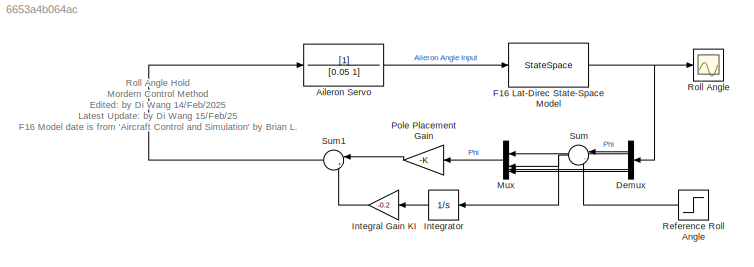
MODEL slx_6653a4b064ac
KIND model
CONFIG AbsTol = auto
CONFIG EnableMultiTasking = off
CONFIG FixedStep = auto
CONFIG MaxStep = auto
CONFIG MinStep = auto
CONFIG RelTol = 1e-3
CONFIG SampleTimeConstraint = Unconstrained
CONFIG SolverName = VariableStepAuto
CONFIG StartTime = 0.0
CONFIG StopTime = 25
BLOCK [TransferFcn] Aileron Servo
  Denominator = [0.05 1]
BLOCK [Demux] Demux
  NameLocation = top
BLOCK [StateSpace] F16 Lat-Direc State-Space Model
  A = sysLat.A
  B = sysLat.B
  C = sysLat.C
  D = sysLat.D
  InitialCondition = 0
BLOCK [Gain] Integral Gain KI
  Gain = -0.2
  NameLocation = top
BLOCK [Integrator] Integrator
  NameLocation = top
BLOCK [Mux] Mux
  DisplayOption = bar
  NameLocation = top
BLOCK [Gain] Pole Placement Gain
  Gain = -K
  Multiplication = Matrix(K*u)
  NameLocation = top
BLOCK [Step] Reference Roll Angle
  NameLocation = top
  SampleTime = 0
BLOCK [Scope] Roll Angle
  Floating = off
  NumInputPorts = 1
  ScopeSpecificationString = Simulink.scopes.TimeScopeBlockCfg('CurrentConfiguration', extmgr.ConfigurationSet(extmgr.Configuration('Core','General UI',true),extmgr.Configuration('Core','Source UI',true),extmgr.Configuration('Sources','WiredSimulink',true),extmgr.Configuration('Visuals','Time Domain',true,'SerializedDisplays',{struct('MinYLimReal','-0.1277','MaxYLimReal','1.12689','YLabelReal','','MinYLimMag','0.00000','MaxYL...<+1668ch>
BLOCK [Sum] Sum
  Inputs = |-+
  NameLocation = top
BLOCK [Sum] Sum1
  Inputs = |++
  NameLocation = top
ANNOTATION (root): Roll Angle Hold Mordern Control Method Edited: by Di Wang 14/Feb/2025 Latest Update: by Di Wang 15/Feb/25 F16 Model date is from 'Aircraft Control and Simulation' by Brian L.
LINE Aileron Servo:1 -> F16 Lat-Direc State-Space Model:1
LINE Demux:1 -> Mux:1
LINE Demux:2 -> Sum:1
LINE Demux:3 -> Mux:3
LINE Demux:4 -> Mux:4
NET F16 Lat-Direc State-Space Model:1 -> Demux:1, Roll Angle:1
LINE Integral Gain KI:1 -> Sum1:2
LINE Integrator:1 -> Integral Gain KI:1
LINE Mux:1 -> Pole Placement Gain:1
LINE Pole Placement Gain:1 -> Sum1:1
LINE Reference Roll Angle:1 -> Sum:2
LINE Sum1:1 -> Aileron Servo:1
NET Sum:1 -> Integrator:1, Mux:2
note: NET lines group one-source signal fan-out (src -> all destinations, sorted); 1:1 wires keep LINE
